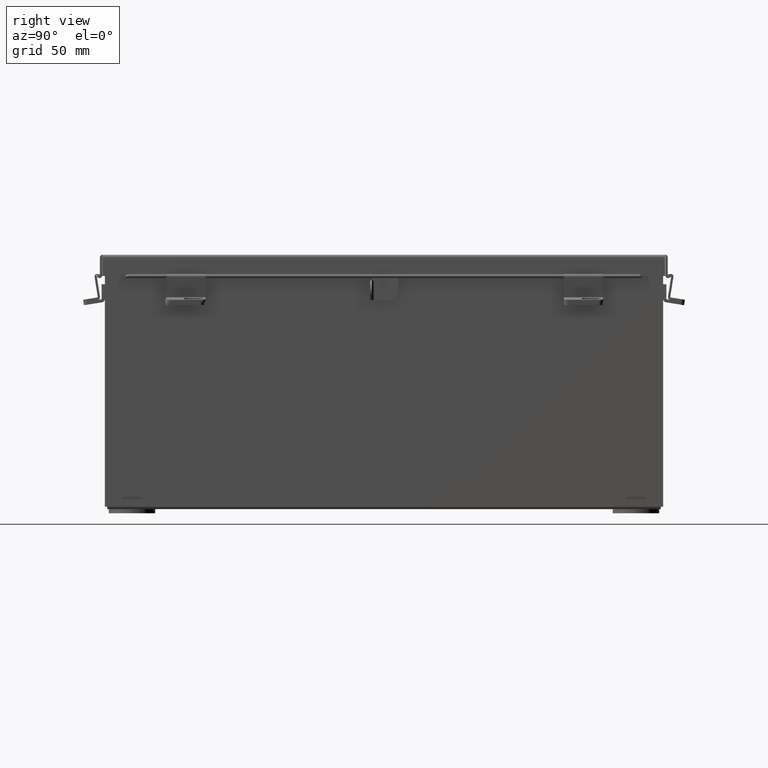
[diagram: clean part render]
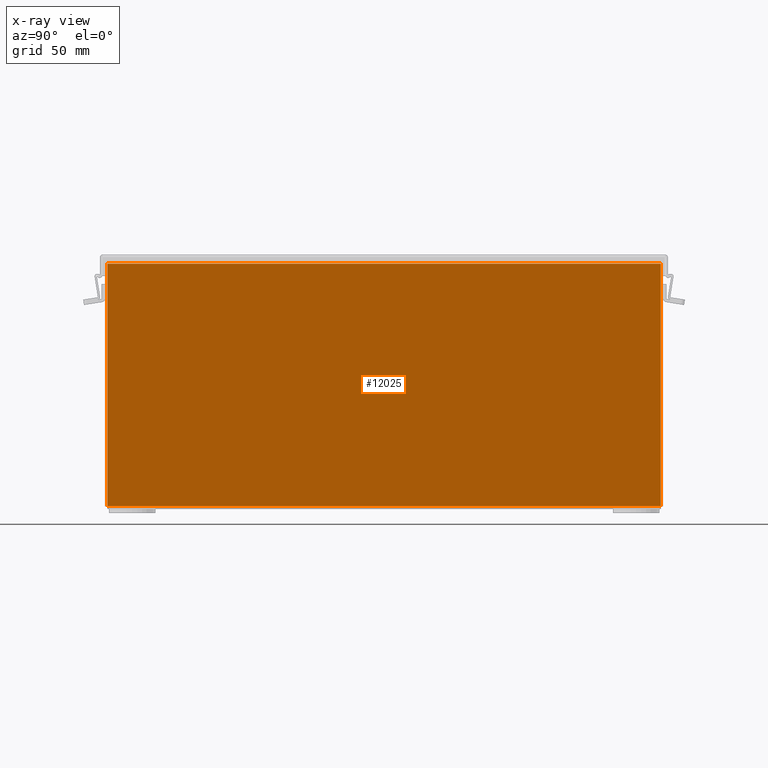
[diagram: x-ray — body ghosted, one internal face saturated and labeled with its STEP entity id]
A machine part, right view, then the same camera in x-ray: the body is ghosted and one INTERNAL B-rep face — a face not visible from any outside direction — is saturated and labeled: STEP entity #12025.
In plain terms, the highlighted planar face has unit normal (-1, 0, 0).
Its self-contained STEP definition (entity closure, byte-faithful):
#48 = VECTOR ( 'NONE', #8969, 39.37007874015748100 ) ;
#1172 = ORIENTED_EDGE ( 'NONE', *, *, #13492, .F. ) ;
#1608 = VERTEX_POINT ( 'NONE', #6548 ) ;
#1617 = CARTESIAN_POINT ( 'NONE',  ( 3.925300000000000500, 0.0000000000000000000, -1.391535071772734100E-014 ) ) ;
#1692 = CARTESIAN_POINT ( 'NONE',  ( 3.925300000000027500, 8.925299999999998200, 7.850599999999999100 ) ) ;
#1765 = DIRECTION ( 'NONE',  ( 0.0000000000000000000, 1.000000000000000000, 0.0000000000000000000 ) ) ;
#1938 = CARTESIAN_POINT ( 'NONE',  ( 3.925300000000027100, 8.925299999999996500, 7.837599999999999200 ) ) ;
#2943 = CARTESIAN_POINT ( 'NONE',  ( 3.925300000000000500, -8.925300000000001800, 0.0000000000000000000 ) ) ;
#3111 = DIRECTION ( 'NONE',  ( 3.479795166820706300E-015, 0.0000000000000000000, 1.000000000000000000 ) ) ;
#3125 = DIRECTION ( 'NONE',  ( 3.479795166820706300E-015, -1.391918066728282600E-016, 1.000000000000000000 ) ) ;
#3262 = VERTEX_POINT ( 'NONE', #6166 ) ;
#4388 = EDGE_LOOP ( 'NONE', ( #5413, #11373, #1172, #7069 ) ) ;
#5075 = EDGE_CURVE ( 'NONE', #3262, #1608, #17216, .T. ) ;
#5147 = VECTOR ( 'NONE', #6374, 39.37007874015748100 ) ;
#5413 = ORIENTED_EDGE ( 'NONE', *, *, #9541, .F. ) ;
#6166 = CARTESIAN_POINT ( 'NONE',  ( 3.925300000000000500, -8.925300000000001800, 0.01300000000000011600 ) ) ;
#6374 = DIRECTION ( 'NONE',  ( -0.0000000000000000000, -1.000000000000000000, -0.0000000000000000000 ) ) ;
#6548 = CARTESIAN_POINT ( 'NONE',  ( 3.925300000000000500, 8.925299999999998200, 0.01300000000000011600 ) ) ;
#7069 = ORIENTED_EDGE ( 'NONE', *, *, #5075, .F. ) ;
#7386 = VECTOR ( 'NONE', #3125, 39.37007874015748100 ) ;
#8969 = DIRECTION ( 'NONE',  ( -3.479795166820706300E-015, -0.0000000000000000000, -1.000000000000000000 ) ) ;
#9223 = CARTESIAN_POINT ( 'NONE',  ( 3.925300000000000500, -8.925300000000001800, 0.01300000000000011600 ) ) ;
#9386 = AXIS2_PLACEMENT_3D ( 'NONE', #1617, #12046, #3111 ) ;
#9541 = EDGE_CURVE ( 'NONE', #9836, #3262, #12400, .T. ) ;
#9836 = VERTEX_POINT ( 'NONE', #14011 ) ;
#11373 = ORIENTED_EDGE ( 'NONE', *, *, #16047, .F. ) ;
#12025 = ADVANCED_FACE ( 'NONE', ( #14847 ), #17951, .T. ) ;
#12046 = DIRECTION ( 'NONE',  ( -1.000000000000000000, 0.0000000000000000000, 3.479795166820706300E-015 ) ) ;
#12400 = LINE ( 'NONE', #2943, #48 ) ;
#12742 = VERTEX_POINT ( 'NONE', #19214 ) ;
#13285 = VECTOR ( 'NONE', #1765, 39.37007874015748100 ) ;
#13492 = EDGE_CURVE ( 'NONE', #1608, #12742, #19228, .T. ) ;
#14011 = CARTESIAN_POINT ( 'NONE',  ( 3.925300000000027100, -8.925300000000000000, 7.837599999999999200 ) ) ;
#14847 = FACE_OUTER_BOUND ( 'NONE', #4388, .T. ) ;
#16047 = EDGE_CURVE ( 'NONE', #12742, #9836, #17495, .T. ) ;
#17216 = LINE ( 'NONE', #9223, #13285 ) ;
#17495 = LINE ( 'NONE', #1938, #5147 ) ;
#17951 = PLANE ( 'NONE',  #9386 ) ;
#19214 = CARTESIAN_POINT ( 'NONE',  ( 3.925300000000027500, 8.925299999999998200, 7.837599999999999200 ) ) ;
#19228 = LINE ( 'NONE', #1692, #7386 ) ;